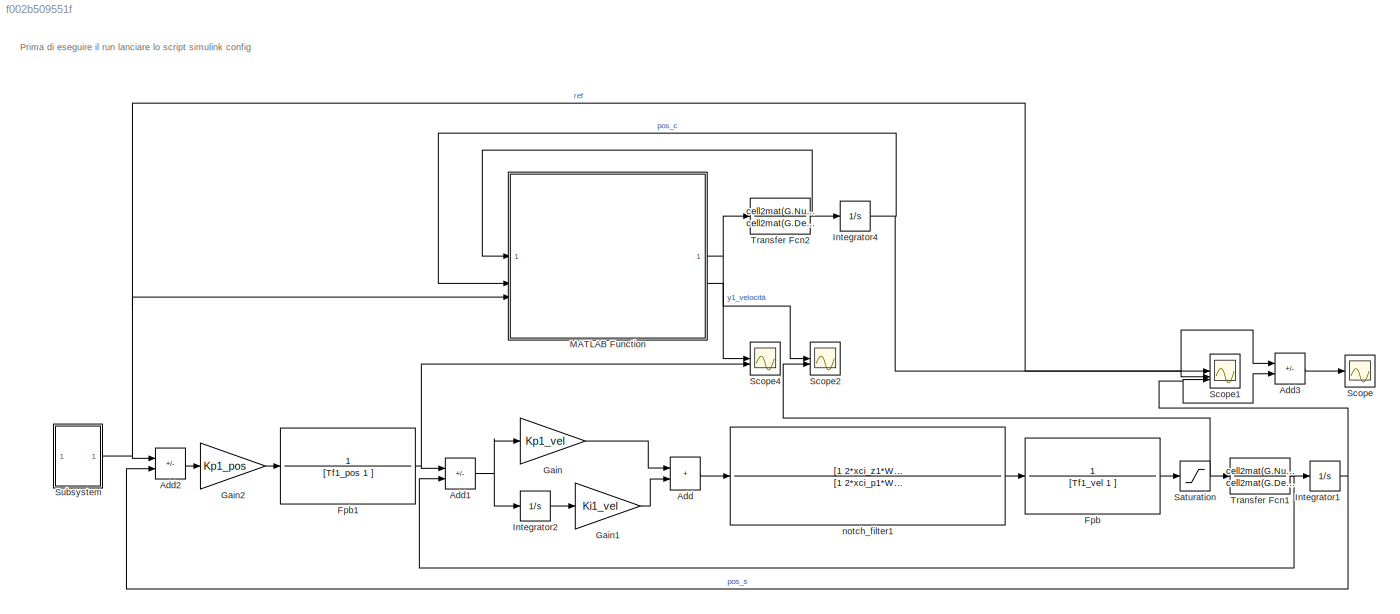
MODEL slx_f002b509551f
KIND model
CONFIG AbsTol = auto
CONFIG EnableMultiTasking = off
CONFIG FixedStep = 0.001
CONFIG MaxStep = auto
CONFIG MinStep = auto
CONFIG RelTol = 1e-3
CONFIG SampleTimeConstraint = Unconstrained
CONFIG SolverName = ode4
CONFIG StartTime = 0.0
CONFIG StopTime = 20
BLOCK [Sum] Add
  IconShape = rectangular
BLOCK [Sum] Add1
  IconShape = rectangular
  Inputs = +-
BLOCK [Sum] Add2
  IconShape = rectangular
  Inputs = +-
BLOCK [Sum] Add3
  IconShape = rectangular
  Inputs = +-
BLOCK [TransferFcn] Fpb
  Denominator = [Tf1_vel 1 ]
  Numerator = 1
BLOCK [TransferFcn] Fpb1
  Denominator = [Tf1_pos 1 ]
  Numerator = 1
BLOCK [Gain] Gain
  Gain = Kp1_vel
BLOCK [Gain] Gain1
  Gain = Ki1_vel
BLOCK [Gain] Gain2
  Gain = Kp1_pos
BLOCK [Integrator] Integrator1
BLOCK [Integrator] Integrator2
BLOCK [Integrator] Integrator4
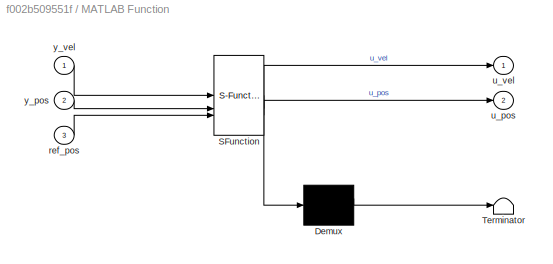
BLOCK [SubSystem] MATLAB Function
  ErrorFcn = Stateflow.Translate.translate
  LibrarySourceBlock = simulink/User-Defined\nFunctions/MATLAB Function
  PermitHierarchicalResolution = ExplicitOnly
  SFBlockType = MATLAB Function
  TreatAsAtomicUnit = on
BLOCK [Demux] MATLAB Function/ Demux 
  Outputs = 1
BLOCK [S-Function] MATLAB Function/ SFunction 
  EnableBusSupport = on
  FunctionName = sf_sfun
  PortCounts = [3 3]
  SFcnIsStateOwnerBlock = off
  SFunctionDeploymentMode = off
  Tag = Stateflow S-Function 2
BLOCK [Terminator] MATLAB Function/ Terminator 
BLOCK [Inport] MATLAB Function/ref_pos
  Port = 3
BLOCK [Outport] MATLAB Function/u_pos
  Port = 2
BLOCK [Outport] MATLAB Function/u_vel
BLOCK [Inport] MATLAB Function/y_pos
  Port = 2
BLOCK [Inport] MATLAB Function/y_vel
BLOCK [Saturate] Saturation
  LowerLimit = -600
  UpperLimit = 600
BLOCK [Scope] Scope
  Floating = off
  NumInputPorts = 1
  ScopeSpecificationString = Simulink.scopes.TimeScopeBlockCfg('CurrentConfiguration', extmgr.ConfigurationSet(extmgr.Configuration('Core','General UI',true,'FigureColor',[1 1 1]),extmgr.Configuration('Core','Source UI',true),extmgr.Configuration('Sources','WiredSimulink',true,'DataLoggingVariableName','ScopeData2'),extmgr.Configuration('Visuals','Time Domain',true,'SerializedDisplays',{struct('MinYLimReal','-0.000034','MaxYL...<+1653ch>
BLOCK [Scope] Scope1
  Floating = off
  NumInputPorts = 3
  ScopeSpecificationString = Simulink.scopes.TimeScopeBlockCfg('CurrentConfiguration', extmgr.ConfigurationSet(extmgr.Configuration('Core','General UI',true,'FigureColor',[1 1 1]),extmgr.Configuration('Core','Source UI',true),extmgr.Configuration('Sources','WiredSimulink',true,'DataLoggingVariableName','ScopeData5'),extmgr.Configuration('Visuals','Time Domain',true,'SerializedDisplays',{struct('MinYLimReal','-0.12576','MaxYLi...<+1825ch>
BLOCK [Scope] Scope2
  Floating = off
  NumInputPorts = 2
  ScopeSpecificationString = Simulink.scopes.TimeScopeBlockCfg('CurrentConfiguration', extmgr.ConfigurationSet(extmgr.Configuration('Core','General UI',true),extmgr.Configuration('Core','Source UI',true),extmgr.Configuration('Sources','WiredSimulink',true,'DataLoggingVariableName','ScopeData1'),extmgr.Configuration('Visuals','Time Domain',true,'SerializedDisplays',{struct('MinYLimReal','-264.86388','MaxYLimReal','264.86388','...<+1523ch>
BLOCK [Scope] Scope4
  Floating = off
  NumInputPorts = 2
  ScopeSpecificationString = Simulink.scopes.TimeScopeBlockCfg('CurrentConfiguration', extmgr.ConfigurationSet(extmgr.Configuration('Core','General UI',true),extmgr.Configuration('Core','Source UI',true),extmgr.Configuration('Sources','WiredSimulink',true,'DataLoggingVariableName','ScopeData3'),extmgr.Configuration('Visuals','Time Domain',true,'SerializedDisplays',{struct('MinYLimReal','-0.18162','MaxYLimReal','0.18162','YLab...<+1493ch>
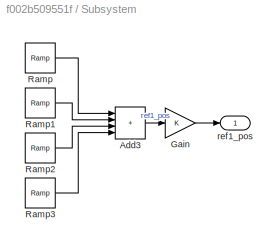
BLOCK [SubSystem] Subsystem
BLOCK [Sum] Subsystem/Add3
  IconShape = rectangular
  Inputs = ++++
BLOCK [Gain] Subsystem/Gain
BLOCK [Reference] Subsystem/Ramp  REF=simulink/Sources/Ramp
  SourceBlock = simulink/Sources/Ramp
  SourceType = Ramp
BLOCK [Reference] Subsystem/Ramp1  REF=simulink/Sources/Ramp
  SourceBlock = simulink/Sources/Ramp
  SourceType = Ramp
BLOCK [Reference] Subsystem/Ramp2  REF=simulink/Sources/Ramp
  SourceBlock = simulink/Sources/Ramp
  SourceType = Ramp
BLOCK [Reference] Subsystem/Ramp3  REF=simulink/Sources/Ramp
  SourceBlock = simulink/Sources/Ramp
  SourceType = Ramp
BLOCK [Outport] Subsystem/ref1_pos
BLOCK [TransferFcn] Transfer Fcn1
  Denominator = cell2mat(G.Denominator)
  Numerator = cell2mat(G.Numerator)
BLOCK [TransferFcn] Transfer Fcn2
  Denominator = cell2mat(G.Denominator)
  Numerator = cell2mat(G.Numerator)
BLOCK [TransferFcn] notch_filter1
  Denominator = [1 2*xci_p1*Wn_notch1 Wn_notch1^2]
  Numerator = [1 2*xci_z1*Wn_notch1 Wn_notch1^2]
ANNOTATION (root): Prima di eseguire il run lanciare lo script simulink config
NET Add1:1 -> Gain:1, Integrator2:1
LINE Add2:1 -> Gain2:1
LINE Add3:1 -> Scope:1
LINE Add:1 -> notch_filter1:1
NET Fpb1:1 -> Add1:1, Scope4:2
LINE Fpb:1 -> Saturation:1
LINE Gain1:1 -> Add:2
LINE Gain2:1 -> Fpb1:1
LINE Gain:1 -> Add:1
NET Integrator1:1 -> Add2:2, Add3:2, Scope1:3
LINE Integrator2:1 -> Gain1:1
NET Integrator4:1 -> Add3:1, MATLAB Function:2, Scope1:2
NET MATLAB Function:1 -> Scope2:1, Transfer Fcn2:1
LINE MATLAB Function:2 -> Scope4:1
NET Saturation:1 -> Scope2:2, Transfer Fcn1:1
LINE Subsystem/Add3:1 -> Subsystem/Gain:1
LINE Subsystem/Gain:1 -> Subsystem/ref1_pos:1
LINE Subsystem/Ramp1:1 -> Subsystem/Add3:2
LINE Subsystem/Ramp2:1 -> Subsystem/Add3:3
LINE Subsystem/Ramp3:1 -> Subsystem/Add3:4
LINE Subsystem/Ramp:1 -> Subsystem/Add3:1
NET Subsystem:1 -> Add2:1, MATLAB Function:3, Scope1:1
NET Transfer Fcn1:1 -> Add1:2, Integrator1:1
NET Transfer Fcn2:1 -> Integrator4:1, MATLAB Function:1
LINE notch_filter1:1 -> Fpb:1
note: NET lines group one-source signal fan-out (src -> all destinations, sorted); 1:1 wires keep LINE
CHART MATLAB Function states=1 transitions=1
  STATE_LABEL 'eML_blk_kernel()'
  STATE_LABEL 'SCRIPT:\nfunction [u_vel,u_pos] = fcn(y_vel,y_pos,ref_pos)\nst = 0.001;\nKp_pos = 1.497822658004661e+02;\nKp_vel = 3.319250421479281e+03;\nKi_vel  = 1.770266891455617e+04;\nKaw = 5.93334;\nUMax = 600;\n%low pass filter esterno\nnup_fpb =0.5;\nnum1p_fpb =0.5;\nnym1p_fpb =0;\nnyp_fpb =1;\n%notch filter\nnu_fn =0.765;\nnum1_fn =-1.111;\nnum2_fn =0.6368;\nny_fn =1;\nnym1_fn =-1.111;\nnym2_fn =0.4019;\n\n%low pass filter e...<+1379ch>'
CHART  states=0 transitions=0
